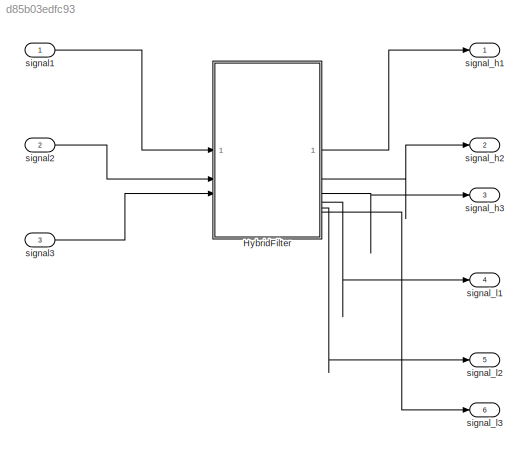
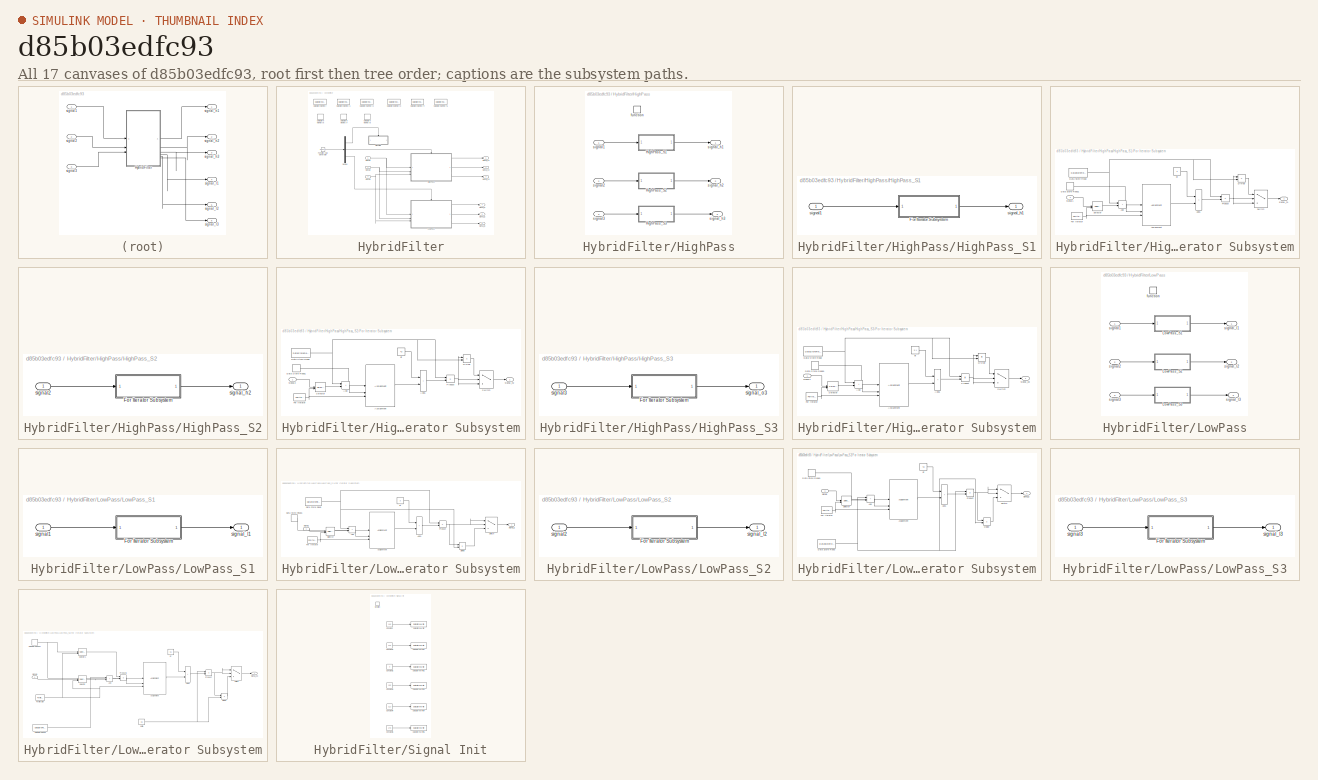
[diagram: thumbnail index - all 17 canvases of the model, root first then tree order]
MODEL slx_d85b03edfc93
KIND model
CONFIG AbsTol = auto
CONFIG EnableMultiTasking = off
CONFIG FixedStep = auto
CONFIG MaxStep = auto
CONFIG MinStep = auto
CONFIG RelTol = 1e-3
CONFIG SampleTimeConstraint = Unconstrained
CONFIG SolverName = VariableStepAuto
CONFIG StartTime = 0.0
CONFIG StopTime = 10.0
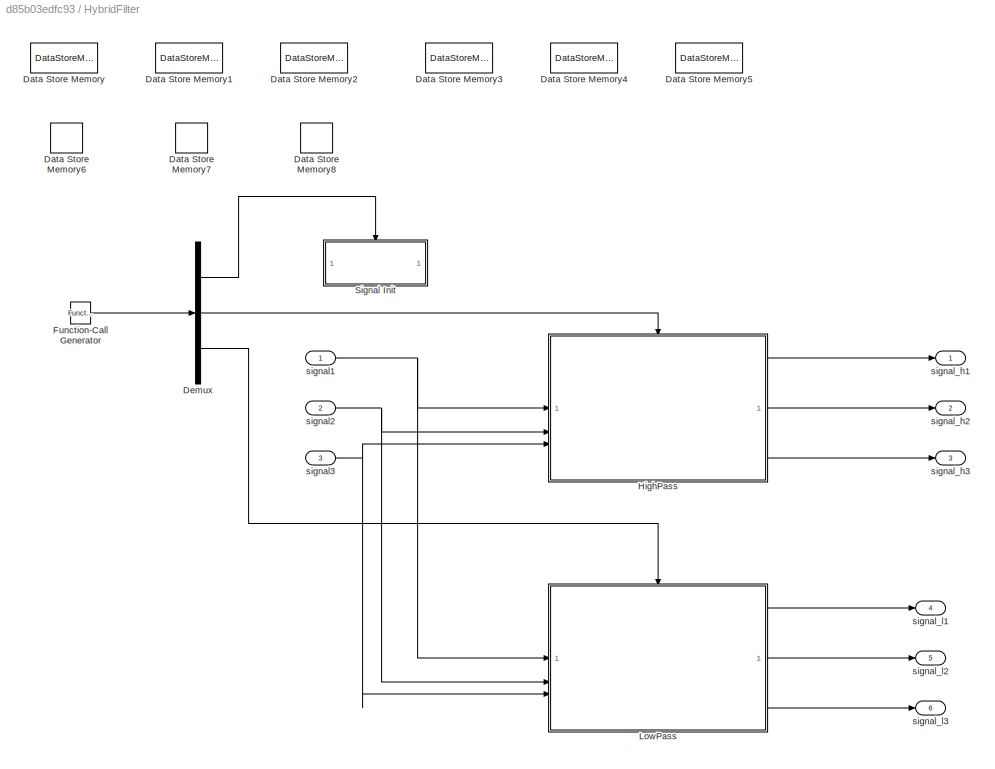
BLOCK [SubSystem] HybridFilter
BLOCK [DataStoreMemory] HybridFilter/Data Store Memory
  DataStoreName = default_hp1
  ShowAdditionalParam = off
  WriteAfterWriteMsg = warning
BLOCK [DataStoreMemory] HybridFilter/Data Store Memory1
  DataStoreName = default_hp2
  ShowAdditionalParam = off
  WriteAfterWriteMsg = warning
BLOCK [DataStoreMemory] HybridFilter/Data Store Memory2
  DataStoreName = default_hp3
  ShowAdditionalParam = off
  WriteAfterWriteMsg = warning
BLOCK [DataStoreMemory] HybridFilter/Data Store Memory3
  DataStoreName = default_lp1
  ShowAdditionalParam = off
  WriteAfterWriteMsg = warning
BLOCK [DataStoreMemory] HybridFilter/Data Store Memory4
  DataStoreName = default_lp2
  ShowAdditionalParam = off
  WriteAfterWriteMsg = warning
BLOCK [DataStoreMemory] HybridFilter/Data Store Memory5
  DataStoreName = default_lp3
  ShowAdditionalParam = off
  WriteAfterWriteMsg = warning
BLOCK [DataStoreMemory] HybridFilter/Data Store Memory6
  DataStoreName = S1
  Dimensions = length
  OutDataTypeStr = double
  ShowAdditionalParam = off
  WriteAfterWriteMsg = warning
BLOCK [DataStoreMemory] HybridFilter/Data Store Memory7
  DataStoreName = S2
  Dimensions = length
  OutDataTypeStr = double
  ShowAdditionalParam = off
  WriteAfterWriteMsg = warning
BLOCK [DataStoreMemory] HybridFilter/Data Store Memory8
  DataStoreName = S3
  Dimensions = length
  OutDataTypeStr = double
  ShowAdditionalParam = off
  WriteAfterWriteMsg = warning
BLOCK [Demux] HybridFilter/Demux
  Outputs = 3
BLOCK [Reference] HybridFilter/Function-Call Generator  REF=simulink/Ports &
Subsystems/Function-Call
Generator
  SourceBlock = simulink/Ports &\nSubsystems/Function-Call\nGenerator
  SourceType = Function-Call Generator
BLOCK [SubSystem] HybridFilter/HighPass
BLOCK [SubSystem] HybridFilter/HighPass/HighPass_S1
  TreatAsAtomicUnit = on
BLOCK [SubSystem] HybridFilter/HighPass/HighPass_S1/For Iterator Subsystem
  TreatAsAtomicUnit = on
BLOCK [Sum] HybridFilter/HighPass/HighPass_S1/For Iterator Subsystem/Add
  IconShape = rectangular
BLOCK [Sum] HybridFilter/HighPass/HighPass_S1/For Iterator Subsystem/Add1
  IconShape = rectangular
BLOCK [Assignment] HybridFilter/HighPass/HighPass_S1/For Iterator Subsystem/Assignment
  DiagnosticForDimensions = Warning
  IndexMode = Zero-based
  IndexOptions = Index vector (port)
  Indices = 1
  OutputSizes = 1
BLOCK [DataStoreRead] HybridFilter/HighPass/HighPass_S1/For Iterator Subsystem/Data Store Read
  DataStoreName = default_hp1
  IndexOptions = Index vector (dialog)
  Indices = 1
  OutputSizes = 1
BLOCK [DataStoreRead] HybridFilter/HighPass/HighPass_S1/For Iterator Subsystem/Data Store Read1
  DataStoreName = S1
  IndexOptions = Index vector (dialog)
  Indices = 1
  OutputSizes = 1
BLOCK [Product] HybridFilter/HighPass/HighPass_S1/For Iterator Subsystem/Divide
  Inputs = */
BLOCK [ForIterator] HybridFilter/HighPass/HighPass_S1/For Iterator Subsystem/For Iterator
  IndexMode = Zero-based
  IterationLimit = length
BLOCK [Product] HybridFilter/HighPass/HighPass_S1/For Iterator Subsystem/Product
BLOCK [Selector] HybridFilter/HighPass/HighPass_S1/For Iterator Subsystem/Selector
  IndexMode = Zero-based
  IndexOptions = Index vector (port)
  Indices = [1 3]
  InputPortWidth = length
  OutputSizes = 1
BLOCK [Switch] HybridFilter/HighPass/HighPass_S1/For Iterator Subsystem/Switch
  Criteria = u2 > Threshold
  InputSameDT = off
  SaturateOnIntegerOverflow = off
  Threshold = 17.13
BLOCK [Constant] HybridFilter/HighPass/HighPass_S1/For Iterator Subsystem/dt
  Value = 3
BLOCK [Inport] HybridFilter/HighPass/HighPass_S1/For Iterator Subsystem/signal1
BLOCK [Outport] HybridFilter/HighPass/HighPass_S1/For Iterator Subsystem/signal_h1
BLOCK [Inport] HybridFilter/HighPass/HighPass_S1/signal1
BLOCK [Outport] HybridFilter/HighPass/HighPass_S1/signal_h1
BLOCK [SubSystem] HybridFilter/HighPass/HighPass_S2
  TreatAsAtomicUnit = on
BLOCK [SubSystem] HybridFilter/HighPass/HighPass_S2/For Iterator Subsystem
  TreatAsAtomicUnit = on
BLOCK [Sum] HybridFilter/HighPass/HighPass_S2/For Iterator Subsystem/Add
  IconShape = rectangular
BLOCK [Sum] HybridFilter/HighPass/HighPass_S2/For Iterator Subsystem/Add1
  IconShape = rectangular
BLOCK [Assignment] HybridFilter/HighPass/HighPass_S2/For Iterator Subsystem/Assignment
  DiagnosticForDimensions = Warning
  IndexMode = Zero-based
  IndexOptions = Index vector (port)
  Indices = 1
  OutputSizes = 1
BLOCK [DataStoreRead] HybridFilter/HighPass/HighPass_S2/For Iterator Subsystem/Data Store Read
  DataStoreName = default_hp2
  IndexOptions = Index vector (dialog)
  Indices = 1
  OutputSizes = 1
BLOCK [DataStoreRead] HybridFilter/HighPass/HighPass_S2/For Iterator Subsystem/Data Store Read1
  DataStoreName = S2
  IndexOptions = Index vector (dialog)
  Indices = 1
  OutputSizes = 1
BLOCK [Product] HybridFilter/HighPass/HighPass_S2/For Iterator Subsystem/Divide
  Inputs = */
BLOCK [ForIterator] HybridFilter/HighPass/HighPass_S2/For Iterator Subsystem/For Iterator
  IndexMode = Zero-based
  IterationLimit = length
BLOCK [Product] HybridFilter/HighPass/HighPass_S2/For Iterator Subsystem/Product
BLOCK [Selector] HybridFilter/HighPass/HighPass_S2/For Iterator Subsystem/Selector
  IndexMode = Zero-based
  IndexOptions = Index vector (port)
  Indices = [1 3]
  InputPortWidth = length
  OutputSizes = 1
BLOCK [Switch] HybridFilter/HighPass/HighPass_S2/For Iterator Subsystem/Switch
  Criteria = u2 > Threshold
  InputSameDT = off
  SaturateOnIntegerOverflow = off
  Threshold = 17.13
BLOCK [Constant] HybridFilter/HighPass/HighPass_S2/For Iterator Subsystem/dt
  Value = 4.3
BLOCK [Inport] HybridFilter/HighPass/HighPass_S2/For Iterator Subsystem/signal2
BLOCK [Outport] HybridFilter/HighPass/HighPass_S2/For Iterator Subsystem/signal_h2
BLOCK [Inport] HybridFilter/HighPass/HighPass_S2/signal2
BLOCK [Outport] HybridFilter/HighPass/HighPass_S2/signal_h2
BLOCK [SubSystem] HybridFilter/HighPass/HighPass_S3
  TreatAsAtomicUnit = on
BLOCK [SubSystem] HybridFilter/HighPass/HighPass_S3/For Iterator Subsystem
  TreatAsAtomicUnit = on
BLOCK [Sum] HybridFilter/HighPass/HighPass_S3/For Iterator Subsystem/Add
  IconShape = rectangular
BLOCK [Sum] HybridFilter/HighPass/HighPass_S3/For Iterator Subsystem/Add1
  IconShape = rectangular
BLOCK [Assignment] HybridFilter/HighPass/HighPass_S3/For Iterator Subsystem/Assignment
  DiagnosticForDimensions = Warning
  IndexMode = Zero-based
  IndexOptions = Index vector (port)
  Indices = 1
  OutputSizes = 1
BLOCK [DataStoreRead] HybridFilter/HighPass/HighPass_S3/For Iterator Subsystem/Data Store Read
  DataStoreName = default_hp3
  IndexOptions = Index vector (dialog)
  Indices = 1
  OutputSizes = 1
BLOCK [DataStoreRead] HybridFilter/HighPass/HighPass_S3/For Iterator Subsystem/Data Store Read1
  DataStoreName = S3
  IndexOptions = Index vector (dialog)
  Indices = 1
  OutputSizes = 1
BLOCK [Product] HybridFilter/HighPass/HighPass_S3/For Iterator Subsystem/Divide
  Inputs = */
BLOCK [ForIterator] HybridFilter/HighPass/HighPass_S3/For Iterator Subsystem/For Iterator
  IndexMode = Zero-based
  IterationLimit = length
BLOCK [Product] HybridFilter/HighPass/HighPass_S3/For Iterator Subsystem/Product
BLOCK [Selector] HybridFilter/HighPass/HighPass_S3/For Iterator Subsystem/Selector
  IndexMode = Zero-based
  IndexOptions = Index vector (port)
  Indices = [1 3]
  InputPortWidth = length
  OutputSizes = 1
BLOCK [Switch] HybridFilter/HighPass/HighPass_S3/For Iterator Subsystem/Switch
  Criteria = u2 > Threshold
  InputSameDT = off
  SaturateOnIntegerOverflow = off
  Threshold = 17.13
BLOCK [Constant] HybridFilter/HighPass/HighPass_S3/For Iterator Subsystem/dt
  Value = 3.1
BLOCK [Inport] HybridFilter/HighPass/HighPass_S3/For Iterator Subsystem/signal3
BLOCK [Outport] HybridFilter/HighPass/HighPass_S3/For Iterator Subsystem/signal_o3
BLOCK [Inport] HybridFilter/HighPass/HighPass_S3/signal3
BLOCK [Outport] HybridFilter/HighPass/HighPass_S3/signal_o3
BLOCK [TriggerPort] HybridFilter/HighPass/function
  StatesWhenEnabling = held
  TriggerType = function-call
  VariantControl = (inherit)
BLOCK [Inport] HybridFilter/HighPass/signal1
BLOCK [Inport] HybridFilter/HighPass/signal2
  Port = 2
BLOCK [Inport] HybridFilter/HighPass/signal3
  Port = 3
BLOCK [Outport] HybridFilter/HighPass/signal_h1
BLOCK [Outport] HybridFilter/HighPass/signal_h2
  Port = 2
BLOCK [Outport] HybridFilter/HighPass/signal_h3
  Port = 3
BLOCK [SubSystem] HybridFilter/LowPass
BLOCK [SubSystem] HybridFilter/LowPass/LowPass_S1
  TreatAsAtomicUnit = on
BLOCK [SubSystem] HybridFilter/LowPass/LowPass_S1/For Iterator Subsystem
  TreatAsAtomicUnit = on
BLOCK [Sum] HybridFilter/LowPass/LowPass_S1/For Iterator Subsystem/Add
  IconShape = rectangular
BLOCK [Sum] HybridFilter/LowPass/LowPass_S1/For Iterator Subsystem/Add1
  IconShape = rectangular
BLOCK [Assignment] HybridFilter/LowPass/LowPass_S1/For Iterator Subsystem/Assignment
  DiagnosticForDimensions = Warning
  IndexMode = Zero-based
  IndexOptions = Index vector (port)
  Indices = 1
  OutputSizes = 1
BLOCK [DataStoreRead] HybridFilter/LowPass/LowPass_S1/For Iterator Subsystem/Data Store Read
  DataStoreName = default_lp1
  IndexOptions = Index vector (dialog)
  Indices = 1
  OutputSizes = 1
BLOCK [DataStoreRead] HybridFilter/LowPass/LowPass_S1/For Iterator Subsystem/Data Store Read1
  DataStoreName = S1
  IndexOptions = Index vector (dialog)
  Indices = 1
  OutputSizes = 1
BLOCK [Product] HybridFilter/LowPass/LowPass_S1/For Iterator Subsystem/Divide
  Inputs = **
BLOCK [ForIterator] HybridFilter/LowPass/LowPass_S1/For Iterator Subsystem/For Iterator
  IndexMode = Zero-based
  IterationLimit = length
BLOCK [Product] HybridFilter/LowPass/LowPass_S1/For Iterator Subsystem/Product
BLOCK [Selector] HybridFilter/LowPass/LowPass_S1/For Iterator Subsystem/Selector
  IndexMode = Zero-based
  IndexOptions = Index vector (port)
  Indices = [1 3]
  InputPortWidth = length
  OutputSizes = 1
BLOCK [Switch] HybridFilter/LowPass/LowPass_S1/For Iterator Subsystem/Switch
  Criteria = u2 > Threshold
  InputSameDT = off
  SaturateOnIntegerOverflow = off
  Threshold = 17.13
BLOCK [Constant] HybridFilter/LowPass/LowPass_S1/For Iterator Subsystem/dt
  Value = 3
BLOCK [Inport] HybridFilter/LowPass/LowPass_S1/For Iterator Subsystem/signal1
BLOCK [Outport] HybridFilter/LowPass/LowPass_S1/For Iterator Subsystem/signal_l1
BLOCK [Inport] HybridFilter/LowPass/LowPass_S1/signal1
BLOCK [Outport] HybridFilter/LowPass/LowPass_S1/signal_l1
BLOCK [SubSystem] HybridFilter/LowPass/LowPass_S2
  TreatAsAtomicUnit = on
BLOCK [SubSystem] HybridFilter/LowPass/LowPass_S2/For Iterator Subsystem
  TreatAsAtomicUnit = on
BLOCK [Sum] HybridFilter/LowPass/LowPass_S2/For Iterator Subsystem/Add
  IconShape = rectangular
BLOCK [Sum] HybridFilter/LowPass/LowPass_S2/For Iterator Subsystem/Add1
  IconShape = rectangular
BLOCK [Assignment] HybridFilter/LowPass/LowPass_S2/For Iterator Subsystem/Assignment
  DiagnosticForDimensions = Warning
  IndexMode = Zero-based
  IndexOptions = Index vector (port)
  Indices = 1
  OutputSizes = 1
BLOCK [DataStoreRead] HybridFilter/LowPass/LowPass_S2/For Iterator Subsystem/Data Store Read
  DataStoreName = default_lp2
  IndexOptions = Index vector (dialog)
  Indices = 1
  OutputSizes = 1
BLOCK [DataStoreRead] HybridFilter/LowPass/LowPass_S2/For Iterator Subsystem/Data Store Read1
  DataStoreName = S2
  IndexOptions = Index vector (dialog)
  Indices = 1
  OutputSizes = 1
BLOCK [Product] HybridFilter/LowPass/LowPass_S2/For Iterator Subsystem/Divide
  Inputs = **
BLOCK [ForIterator] HybridFilter/LowPass/LowPass_S2/For Iterator Subsystem/For Iterator
  IndexMode = Zero-based
  IterationLimit = length
BLOCK [Product] HybridFilter/LowPass/LowPass_S2/For Iterator Subsystem/Product
BLOCK [Selector] HybridFilter/LowPass/LowPass_S2/For Iterator Subsystem/Selector
  IndexMode = Zero-based
  IndexOptions = Index vector (port)
  Indices = [1 3]
  InputPortWidth = length
  OutputSizes = 1
BLOCK [Switch] HybridFilter/LowPass/LowPass_S2/For Iterator Subsystem/Switch
  Criteria = u2 > Threshold
  InputSameDT = off
  SaturateOnIntegerOverflow = off
  Threshold = 17.13
BLOCK [Constant] HybridFilter/LowPass/LowPass_S2/For Iterator Subsystem/dt
  Value = 4.3
BLOCK [Inport] HybridFilter/LowPass/LowPass_S2/For Iterator Subsystem/signal2
BLOCK [Outport] HybridFilter/LowPass/LowPass_S2/For Iterator Subsystem/signal_l2
BLOCK [Inport] HybridFilter/LowPass/LowPass_S2/signal2
BLOCK [Outport] HybridFilter/LowPass/LowPass_S2/signal_l2
BLOCK [SubSystem] HybridFilter/LowPass/LowPass_S3
  TreatAsAtomicUnit = on
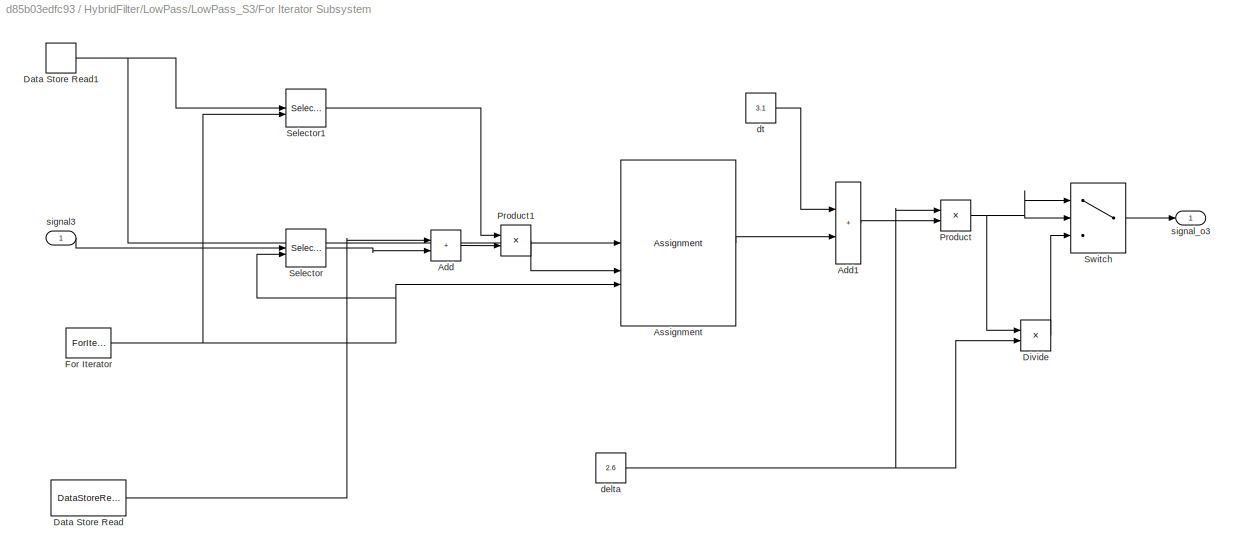
BLOCK [SubSystem] HybridFilter/LowPass/LowPass_S3/For Iterator Subsystem
  TreatAsAtomicUnit = on
BLOCK [Sum] HybridFilter/LowPass/LowPass_S3/For Iterator Subsystem/Add
  IconShape = rectangular
BLOCK [Sum] HybridFilter/LowPass/LowPass_S3/For Iterator Subsystem/Add1
  IconShape = rectangular
BLOCK [Assignment] HybridFilter/LowPass/LowPass_S3/For Iterator Subsystem/Assignment
  DiagnosticForDimensions = Warning
  IndexMode = Zero-based
  IndexOptions = Index vector (port)
  Indices = 1
  OutputSizes = 1
BLOCK [DataStoreRead] HybridFilter/LowPass/LowPass_S3/For Iterator Subsystem/Data Store Read
  DataStoreName = default_lp3
  IndexOptions = Index vector (dialog)
  Indices = 1
  OutputSizes = 1
BLOCK [DataStoreRead] HybridFilter/LowPass/LowPass_S3/For Iterator Subsystem/Data Store Read1
  DataStoreName = S3
  IndexOptions = Index vector (dialog)
  Indices = 1
  OutputSizes = 1
BLOCK [Product] HybridFilter/LowPass/LowPass_S3/For Iterator Subsystem/Divide
  Inputs = **
BLOCK [ForIterator] HybridFilter/LowPass/LowPass_S3/For Iterator Subsystem/For Iterator
  IndexMode = Zero-based
  IterationLimit = length
BLOCK [Product] HybridFilter/LowPass/LowPass_S3/For Iterator Subsystem/Product
BLOCK [Product] HybridFilter/LowPass/LowPass_S3/For Iterator Subsystem/Product1
BLOCK [Selector] HybridFilter/LowPass/LowPass_S3/For Iterator Subsystem/Selector
  IndexMode = Zero-based
  IndexOptions = Index vector (port)
  Indices = [1 3]
  InputPortWidth = length
  OutputSizes = 1
BLOCK [Selector] HybridFilter/LowPass/LowPass_S3/For Iterator Subsystem/Selector1
  IndexMode = Zero-based
  IndexOptions = Index vector (port)
  Indices = [1 3]
  InputPortWidth = length
  OutputSizes = 1
BLOCK [Switch] HybridFilter/LowPass/LowPass_S3/For Iterator Subsystem/Switch
  Criteria = u2 > Threshold
  InputSameDT = off
  SaturateOnIntegerOverflow = off
  Threshold = 17.13
BLOCK [Constant] HybridFilter/LowPass/LowPass_S3/For Iterator Subsystem/delta
  Value = 2.6
BLOCK [Constant] HybridFilter/LowPass/LowPass_S3/For Iterator Subsystem/dt
  Value = 3.1
BLOCK [Inport] HybridFilter/LowPass/LowPass_S3/For Iterator Subsystem/signal3
BLOCK [Outport] HybridFilter/LowPass/LowPass_S3/For Iterator Subsystem/signal_o3
BLOCK [Inport] HybridFilter/LowPass/LowPass_S3/signal3
BLOCK [Outport] HybridFilter/LowPass/LowPass_S3/signal_l3
BLOCK [TriggerPort] HybridFilter/LowPass/function
  StatesWhenEnabling = held
  TriggerType = function-call
  VariantControl = (inherit)
BLOCK [Inport] HybridFilter/LowPass/signal1
BLOCK [Inport] HybridFilter/LowPass/signal2
  Port = 2
BLOCK [Inport] HybridFilter/LowPass/signal3
  Port = 3
BLOCK [Outport] HybridFilter/LowPass/signal_l1
BLOCK [Outport] HybridFilter/LowPass/signal_l2
  Port = 2
BLOCK [Outport] HybridFilter/LowPass/signal_l3
  Port = 3
BLOCK [SubSystem] HybridFilter/Signal Init
  TreatAsAtomicUnit = on
BLOCK [Constant] HybridFilter/Signal Init/Constant
  OutDataTypeStr = single
  Value = 1.95
BLOCK [Constant] HybridFilter/Signal Init/Constant1
  OutDataTypeStr = single
  Value = 2.15
BLOCK [Constant] HybridFilter/Signal Init/Constant2
  OutDataTypeStr = single
  Value = 3
BLOCK [Constant] HybridFilter/Signal Init/Constant3
  OutDataTypeStr = single
  Value = 1.55
BLOCK [Constant] HybridFilter/Signal Init/Constant4
  OutDataTypeStr = single
  Value = 3.13
BLOCK [Constant] HybridFilter/Signal Init/Constant5
  OutDataTypeStr = single
  Value = 2.78
BLOCK [DataStoreWrite] HybridFilter/Signal Init/Data Store Write
  DataStoreName = default_hp1
  IndexOptions = Index vector (dialog)
  Indices = 1
  OutputSizes = 1
BLOCK [DataStoreWrite] HybridFilter/Signal Init/Data Store Write1
  DataStoreName = default_hp2
  IndexOptions = Index vector (dialog)
  Indices = 1
  OutputSizes = 1
BLOCK [DataStoreWrite] HybridFilter/Signal Init/Data Store Write2
  DataStoreName = default_hp3
  IndexOptions = Index vector (dialog)
  Indices = 1
  OutputSizes = 1
BLOCK [DataStoreWrite] HybridFilter/Signal Init/Data Store Write3
  DataStoreName = default_lp1
  IndexOptions = Index vector (dialog)
  Indices = 1
  OutputSizes = 1
BLOCK [DataStoreWrite] HybridFilter/Signal Init/Data Store Write4
  DataStoreName = default_lp2
  IndexOptions = Index vector (dialog)
  Indices = 1
  OutputSizes = 1
BLOCK [DataStoreWrite] HybridFilter/Signal Init/Data Store Write5
  DataStoreName = default_lp3
  IndexOptions = Index vector (dialog)
  Indices = 1
  OutputSizes = 1
BLOCK [TriggerPort] HybridFilter/Signal Init/function
  StatesWhenEnabling = held
  TriggerType = function-call
  VariantControl = (inherit)
BLOCK [Inport] HybridFilter/signal1
  PortDimensions = length
BLOCK [Inport] HybridFilter/signal2
  Port = 2
  PortDimensions = length
BLOCK [Inport] HybridFilter/signal3
  Port = 3
  PortDimensions = length
BLOCK [Outport] HybridFilter/signal_h1
BLOCK [Outport] HybridFilter/signal_h2
  Port = 2
BLOCK [Outport] HybridFilter/signal_h3
  Port = 3
BLOCK [Outport] HybridFilter/signal_l1
  Port = 4
BLOCK [Outport] HybridFilter/signal_l2
  Port = 5
BLOCK [Outport] HybridFilter/signal_l3
  Port = 6
BLOCK [Inport] signal1
  OutDataTypeStr = double
  PortDimensions = 32
BLOCK [Inport] signal2
  OutDataTypeStr = double
  Port = 2
  PortDimensions = 32
BLOCK [Inport] signal3
  OutDataTypeStr = double
  Port = 3
  PortDimensions = 32
BLOCK [Outport] signal_h1
BLOCK [Outport] signal_h2
  Port = 2
BLOCK [Outport] signal_h3
  Port = 3
BLOCK [Outport] signal_l1
  Port = 4
BLOCK [Outport] signal_l2
  Port = 5
BLOCK [Outport] signal_l3
  Port = 6
LINE HybridFilter/Demux:1 -> HybridFilter/Signal Init:trigger
LINE HybridFilter/Demux:2 -> HybridFilter/HighPass:trigger
LINE HybridFilter/Demux:3 -> HybridFilter/LowPass:trigger
LINE HybridFilter/Function-Call Generator:1 -> HybridFilter/Demux:1
LINE HybridFilter/HighPass/HighPass_S1/For Iterator Subsystem/Add1:1 -> HybridFilter/HighPass/HighPass_S1/For Iterator Subsystem/Product:2
LINE HybridFilter/HighPass/HighPass_S1/For Iterator Subsystem/Add:1 -> HybridFilter/HighPass/HighPass_S1/For Iterator Subsystem/Assignment:2
LINE HybridFilter/HighPass/HighPass_S1/For Iterator Subsystem/Assignment:1 -> HybridFilter/HighPass/HighPass_S1/For Iterator Subsystem/Add1:2
LINE HybridFilter/HighPass/HighPass_S1/For Iterator Subsystem/Data Store Read1:1 -> HybridFilter/HighPass/HighPass_S1/For Iterator Subsystem/Assignment:1
NET HybridFilter/HighPass/HighPass_S1/For Iterator Subsystem/Data Store Read:1 -> HybridFilter/HighPass/HighPass_S1/For Iterator Subsystem/Add:1, HybridFilter/HighPass/HighPass_S1/For Iterator Subsystem/Divide:2, HybridFilter/HighPass/HighPass_S1/For Iterator Subsystem/Product:1
LINE HybridFilter/HighPass/HighPass_S1/For Iterator Subsystem/Divide:1 -> HybridFilter/HighPass/HighPass_S1/For Iterator Subsystem/Switch:1
NET HybridFilter/HighPass/HighPass_S1/For Iterator Subsystem/For Iterator:1 -> HybridFilter/HighPass/HighPass_S1/For Iterator Subsystem/Assignment:3, HybridFilter/HighPass/HighPass_S1/For Iterator Subsystem/Selector:2
NET HybridFilter/HighPass/HighPass_S1/For Iterator Subsystem/Product:1 -> HybridFilter/HighPass/HighPass_S1/For Iterator Subsystem/Divide:1, HybridFilter/HighPass/HighPass_S1/For Iterator Subsystem/Switch:2, HybridFilter/HighPass/HighPass_S1/For Iterator Subsystem/Switch:3
LINE HybridFilter/HighPass/HighPass_S1/For Iterator Subsystem/Selector:1 -> HybridFilter/HighPass/HighPass_S1/For Iterator Subsystem/Add:2
LINE HybridFilter/HighPass/HighPass_S1/For Iterator Subsystem/Switch:1 -> HybridFilter/HighPass/HighPass_S1/For Iterator Subsystem/signal_h1:1
LINE HybridFilter/HighPass/HighPass_S1/For Iterator Subsystem/dt:1 -> HybridFilter/HighPass/HighPass_S1/For Iterator Subsystem/Add1:1
LINE HybridFilter/HighPass/HighPass_S1/For Iterator Subsystem/signal1:1 -> HybridFilter/HighPass/HighPass_S1/For Iterator Subsystem/Selector:1
LINE HybridFilter/HighPass/HighPass_S1/For Iterator Subsystem:1 -> HybridFilter/HighPass/HighPass_S1/signal_h1:1
LINE HybridFilter/HighPass/HighPass_S1/signal1:1 -> HybridFilter/HighPass/HighPass_S1/For Iterator Subsystem:1
LINE HybridFilter/HighPass/HighPass_S1:1 -> HybridFilter/HighPass/signal_h1:1
LINE HybridFilter/HighPass/HighPass_S2/For Iterator Subsystem/Add1:1 -> HybridFilter/HighPass/HighPass_S2/For Iterator Subsystem/Product:2
LINE HybridFilter/HighPass/HighPass_S2/For Iterator Subsystem/Add:1 -> HybridFilter/HighPass/HighPass_S2/For Iterator Subsystem/Assignment:2
LINE HybridFilter/HighPass/HighPass_S2/For Iterator Subsystem/Assignment:1 -> HybridFilter/HighPass/HighPass_S2/For Iterator Subsystem/Add1:2
LINE HybridFilter/HighPass/HighPass_S2/For Iterator Subsystem/Data Store Read1:1 -> HybridFilter/HighPass/HighPass_S2/For Iterator Subsystem/Assignment:1
NET HybridFilter/HighPass/HighPass_S2/For Iterator Subsystem/Data Store Read:1 -> HybridFilter/HighPass/HighPass_S2/For Iterator Subsystem/Add:1, HybridFilter/HighPass/HighPass_S2/For Iterator Subsystem/Divide:2, HybridFilter/HighPass/HighPass_S2/For Iterator Subsystem/Product:1
LINE HybridFilter/HighPass/HighPass_S2/For Iterator Subsystem/Divide:1 -> HybridFilter/HighPass/HighPass_S2/For Iterator Subsystem/Switch:1
NET HybridFilter/HighPass/HighPass_S2/For Iterator Subsystem/For Iterator:1 -> HybridFilter/HighPass/HighPass_S2/For Iterator Subsystem/Assignment:3, HybridFilter/HighPass/HighPass_S2/For Iterator Subsystem/Selector:2
NET HybridFilter/HighPass/HighPass_S2/For Iterator Subsystem/Product:1 -> HybridFilter/HighPass/HighPass_S2/For Iterator Subsystem/Divide:1, HybridFilter/HighPass/HighPass_S2/For Iterator Subsystem/Switch:2, HybridFilter/HighPass/HighPass_S2/For Iterator Subsystem/Switch:3
LINE HybridFilter/HighPass/HighPass_S2/For Iterator Subsystem/Selector:1 -> HybridFilter/HighPass/HighPass_S2/For Iterator Subsystem/Add:2
LINE HybridFilter/HighPass/HighPass_S2/For Iterator Subsystem/Switch:1 -> HybridFilter/HighPass/HighPass_S2/For Iterator Subsystem/signal_h2:1
LINE HybridFilter/HighPass/HighPass_S2/For Iterator Subsystem/dt:1 -> HybridFilter/HighPass/HighPass_S2/For Iterator Subsystem/Add1:1
LINE HybridFilter/HighPass/HighPass_S2/For Iterator Subsystem/signal2:1 -> HybridFilter/HighPass/HighPass_S2/For Iterator Subsystem/Selector:1
LINE HybridFilter/HighPass/HighPass_S2/For Iterator Subsystem:1 -> HybridFilter/HighPass/HighPass_S2/signal_h2:1
LINE HybridFilter/HighPass/HighPass_S2/signal2:1 -> HybridFilter/HighPass/HighPass_S2/For Iterator Subsystem:1
LINE HybridFilter/HighPass/HighPass_S2:1 -> HybridFilter/HighPass/signal_h2:1
LINE HybridFilter/HighPass/HighPass_S3/For Iterator Subsystem/Add1:1 -> HybridFilter/HighPass/HighPass_S3/For Iterator Subsystem/Product:2
LINE HybridFilter/HighPass/HighPass_S3/For Iterator Subsystem/Add:1 -> HybridFilter/HighPass/HighPass_S3/For Iterator Subsystem/Assignment:2
LINE HybridFilter/HighPass/HighPass_S3/For Iterator Subsystem/Assignment:1 -> HybridFilter/HighPass/HighPass_S3/For Iterator Subsystem/Add1:2
LINE HybridFilter/HighPass/HighPass_S3/For Iterator Subsystem/Data Store Read1:1 -> HybridFilter/HighPass/HighPass_S3/For Iterator Subsystem/Assignment:1
NET HybridFilter/HighPass/HighPass_S3/For Iterator Subsystem/Data Store Read:1 -> HybridFilter/HighPass/HighPass_S3/For Iterator Subsystem/Add:1, HybridFilter/HighPass/HighPass_S3/For Iterator Subsystem/Divide:2, HybridFilter/HighPass/HighPass_S3/For Iterator Subsystem/Product:1
LINE HybridFilter/HighPass/HighPass_S3/For Iterator Subsystem/Divide:1 -> HybridFilter/HighPass/HighPass_S3/For Iterator Subsystem/Switch:1
NET HybridFilter/HighPass/HighPass_S3/For Iterator Subsystem/For Iterator:1 -> HybridFilter/HighPass/HighPass_S3/For Iterator Subsystem/Assignment:3, HybridFilter/HighPass/HighPass_S3/For Iterator Subsystem/Selector:2
NET HybridFilter/HighPass/HighPass_S3/For Iterator Subsystem/Product:1 -> HybridFilter/HighPass/HighPass_S3/For Iterator Subsystem/Divide:1, HybridFilter/HighPass/HighPass_S3/For Iterator Subsystem/Switch:2, HybridFilter/HighPass/HighPass_S3/For Iterator Subsystem/Switch:3
LINE HybridFilter/HighPass/HighPass_S3/For Iterator Subsystem/Selector:1 -> HybridFilter/HighPass/HighPass_S3/For Iterator Subsystem/Add:2
LINE HybridFilter/HighPass/HighPass_S3/For Iterator Subsystem/Switch:1 -> HybridFilter/HighPass/HighPass_S3/For Iterator Subsystem/signal_o3:1
LINE HybridFilter/HighPass/HighPass_S3/For Iterator Subsystem/dt:1 -> HybridFilter/HighPass/HighPass_S3/For Iterator Subsystem/Add1:1
LINE HybridFilter/HighPass/HighPass_S3/For Iterator Subsystem/signal3:1 -> HybridFilter/HighPass/HighPass_S3/For Iterator Subsystem/Selector:1
LINE HybridFilter/HighPass/HighPass_S3/For Iterator Subsystem:1 -> HybridFilter/HighPass/HighPass_S3/signal_o3:1
LINE HybridFilter/HighPass/HighPass_S3/signal3:1 -> HybridFilter/HighPass/HighPass_S3/For Iterator Subsystem:1
LINE HybridFilter/HighPass/HighPass_S3:1 -> HybridFilter/HighPass/signal_h3:1
LINE HybridFilter/HighPass/signal1:1 -> HybridFilter/HighPass/HighPass_S1:1
LINE HybridFilter/HighPass/signal2:1 -> HybridFilter/HighPass/HighPass_S2:1
LINE HybridFilter/HighPass/signal3:1 -> HybridFilter/HighPass/HighPass_S3:1
LINE HybridFilter/HighPass:1 -> HybridFilter/signal_h1:1
LINE HybridFilter/HighPass:2 -> HybridFilter/signal_h2:1
LINE HybridFilter/HighPass:3 -> HybridFilter/signal_h3:1
LINE HybridFilter/LowPass/LowPass_S1/For Iterator Subsystem/Add1:1 -> HybridFilter/LowPass/LowPass_S1/For Iterator Subsystem/Product:2
LINE HybridFilter/LowPass/LowPass_S1/For Iterator Subsystem/Add:1 -> HybridFilter/LowPass/LowPass_S1/For Iterator Subsystem/Assignment:2
LINE HybridFilter/LowPass/LowPass_S1/For Iterator Subsystem/Assignment:1 -> HybridFilter/LowPass/LowPass_S1/For Iterator Subsystem/Add1:2
LINE HybridFilter/LowPass/LowPass_S1/For Iterator Subsystem/Data Store Read1:1 -> HybridFilter/LowPass/LowPass_S1/For Iterator Subsystem/Assignment:1
NET HybridFilter/LowPass/LowPass_S1/For Iterator Subsystem/Data Store Read:1 -> HybridFilter/LowPass/LowPass_S1/For Iterator Subsystem/Add:1, HybridFilter/LowPass/LowPass_S1/For Iterator Subsystem/Divide:2, HybridFilter/LowPass/LowPass_S1/For Iterator Subsystem/Product:1
LINE HybridFilter/LowPass/LowPass_S1/For Iterator Subsystem/Divide:1 -> HybridFilter/LowPass/LowPass_S1/For Iterator Subsystem/Switch:3
NET HybridFilter/LowPass/LowPass_S1/For Iterator Subsystem/For Iterator:1 -> HybridFilter/LowPass/LowPass_S1/For Iterator Subsystem/Assignment:3, HybridFilter/LowPass/LowPass_S1/For Iterator Subsystem/Selector:2
NET HybridFilter/LowPass/LowPass_S1/For Iterator Subsystem/Product:1 -> HybridFilter/LowPass/LowPass_S1/For Iterator Subsystem/Divide:1, HybridFilter/LowPass/LowPass_S1/For Iterator Subsystem/Switch:1, HybridFilter/LowPass/LowPass_S1/For Iterator Subsystem/Switch:2
LINE HybridFilter/LowPass/LowPass_S1/For Iterator Subsystem/Selector:1 -> HybridFilter/LowPass/LowPass_S1/For Iterator Subsystem/Add:2
LINE HybridFilter/LowPass/LowPass_S1/For Iterator Subsystem/Switch:1 -> HybridFilter/LowPass/LowPass_S1/For Iterator Subsystem/signal_l1:1
LINE HybridFilter/LowPass/LowPass_S1/For Iterator Subsystem/dt:1 -> HybridFilter/LowPass/LowPass_S1/For Iterator Subsystem/Add1:1
LINE HybridFilter/LowPass/LowPass_S1/For Iterator Subsystem/signal1:1 -> HybridFilter/LowPass/LowPass_S1/For Iterator Subsystem/Selector:1
LINE HybridFilter/LowPass/LowPass_S1/For Iterator Subsystem:1 -> HybridFilter/LowPass/LowPass_S1/signal_l1:1
LINE HybridFilter/LowPass/LowPass_S1/signal1:1 -> HybridFilter/LowPass/LowPass_S1/For Iterator Subsystem:1
LINE HybridFilter/LowPass/LowPass_S1:1 -> HybridFilter/LowPass/signal_l1:1
LINE HybridFilter/LowPass/LowPass_S2/For Iterator Subsystem/Add1:1 -> HybridFilter/LowPass/LowPass_S2/For Iterator Subsystem/Product:2
LINE HybridFilter/LowPass/LowPass_S2/For Iterator Subsystem/Add:1 -> HybridFilter/LowPass/LowPass_S2/For Iterator Subsystem/Assignment:2
LINE HybridFilter/LowPass/LowPass_S2/For Iterator Subsystem/Assignment:1 -> HybridFilter/LowPass/LowPass_S2/For Iterator Subsystem/Add1:2
LINE HybridFilter/LowPass/LowPass_S2/For Iterator Subsystem/Data Store Read1:1 -> HybridFilter/LowPass/LowPass_S2/For Iterator Subsystem/Assignment:1
NET HybridFilter/LowPass/LowPass_S2/For Iterator Subsystem/Data Store Read:1 -> HybridFilter/LowPass/LowPass_S2/For Iterator Subsystem/Add:1, HybridFilter/LowPass/LowPass_S2/For Iterator Subsystem/Divide:2, HybridFilter/LowPass/LowPass_S2/For Iterator Subsystem/Product:1
LINE HybridFilter/LowPass/LowPass_S2/For Iterator Subsystem/Divide:1 -> HybridFilter/LowPass/LowPass_S2/For Iterator Subsystem/Switch:3
NET HybridFilter/LowPass/LowPass_S2/For Iterator Subsystem/For Iterator:1 -> HybridFilter/LowPass/LowPass_S2/For Iterator Subsystem/Assignment:3, HybridFilter/LowPass/LowPass_S2/For Iterator Subsystem/Selector:2
NET HybridFilter/LowPass/LowPass_S2/For Iterator Subsystem/Product:1 -> HybridFilter/LowPass/LowPass_S2/For Iterator Subsystem/Divide:1, HybridFilter/LowPass/LowPass_S2/For Iterator Subsystem/Switch:1, HybridFilter/LowPass/LowPass_S2/For Iterator Subsystem/Switch:2
LINE HybridFilter/LowPass/LowPass_S2/For Iterator Subsystem/Selector:1 -> HybridFilter/LowPass/LowPass_S2/For Iterator Subsystem/Add:2
LINE HybridFilter/LowPass/LowPass_S2/For Iterator Subsystem/Switch:1 -> HybridFilter/LowPass/LowPass_S2/For Iterator Subsystem/signal_l2:1
LINE HybridFilter/LowPass/LowPass_S2/For Iterator Subsystem/dt:1 -> HybridFilter/LowPass/LowPass_S2/For Iterator Subsystem/Add1:1
LINE HybridFilter/LowPass/LowPass_S2/For Iterator Subsystem/signal2:1 -> HybridFilter/LowPass/LowPass_S2/For Iterator Subsystem/Selector:1
LINE HybridFilter/LowPass/LowPass_S2/For Iterator Subsystem:1 -> HybridFilter/LowPass/LowPass_S2/signal_l2:1
LINE HybridFilter/LowPass/LowPass_S2/signal2:1 -> HybridFilter/LowPass/LowPass_S2/For Iterator Subsystem:1
LINE HybridFilter/LowPass/LowPass_S2:1 -> HybridFilter/LowPass/signal_l2:1
LINE HybridFilter/LowPass/LowPass_S3/For Iterator Subsystem/Add1:1 -> HybridFilter/LowPass/LowPass_S3/For Iterator Subsystem/Product:2
LINE HybridFilter/LowPass/LowPass_S3/For Iterator Subsystem/Add:1 -> HybridFilter/LowPass/LowPass_S3/For Iterator Subsystem/Product1:2
LINE HybridFilter/LowPass/LowPass_S3/For Iterator Subsystem/Assignment:1 -> HybridFilter/LowPass/LowPass_S3/For Iterator Subsystem/Add1:2
NET HybridFilter/LowPass/LowPass_S3/For Iterator Subsystem/Data Store Read1:1 -> HybridFilter/LowPass/LowPass_S3/For Iterator Subsystem/Assignment:1, HybridFilter/LowPass/LowPass_S3/For Iterator Subsystem/Selector1:1
LINE HybridFilter/LowPass/LowPass_S3/For Iterator Subsystem/Data Store Read:1 -> HybridFilter/LowPass/LowPass_S3/For Iterator Subsystem/Add:1
LINE HybridFilter/LowPass/LowPass_S3/For Iterator Subsystem/Divide:1 -> HybridFilter/LowPass/LowPass_S3/For Iterator Subsystem/Switch:3
NET HybridFilter/LowPass/LowPass_S3/For Iterator Subsystem/For Iterator:1 -> HybridFilter/LowPass/LowPass_S3/For Iterator Subsystem/Assignment:3, HybridFilter/LowPass/LowPass_S3/For Iterator Subsystem/Selector1:2, HybridFilter/LowPass/LowPass_S3/For Iterator Subsystem/Selector:2
LINE HybridFilter/LowPass/LowPass_S3/For Iterator Subsystem/Product1:1 -> HybridFilter/LowPass/LowPass_S3/For Iterator Subsystem/Assignment:2
NET HybridFilter/LowPass/LowPass_S3/For Iterator Subsystem/Product:1 -> HybridFilter/LowPass/LowPass_S3/For Iterator Subsystem/Divide:1, HybridFilter/LowPass/LowPass_S3/For Iterator Subsystem/Switch:1, HybridFilter/LowPass/LowPass_S3/For Iterator Subsystem/Switch:2
LINE HybridFilter/LowPass/LowPass_S3/For Iterator Subsystem/Selector1:1 -> HybridFilter/LowPass/LowPass_S3/For Iterator Subsystem/Product1:1
LINE HybridFilter/LowPass/LowPass_S3/For Iterator Subsystem/Selector:1 -> HybridFilter/LowPass/LowPass_S3/For Iterator Subsystem/Add:2
LINE HybridFilter/LowPass/LowPass_S3/For Iterator Subsystem/Switch:1 -> HybridFilter/LowPass/LowPass_S3/For Iterator Subsystem/signal_o3:1
NET HybridFilter/LowPass/LowPass_S3/For Iterator Subsystem/delta:1 -> HybridFilter/LowPass/LowPass_S3/For Iterator Subsystem/Divide:2, HybridFilter/LowPass/LowPass_S3/For Iterator Subsystem/Product:1
LINE HybridFilter/LowPass/LowPass_S3/For Iterator Subsystem/dt:1 -> HybridFilter/LowPass/LowPass_S3/For Iterator Subsystem/Add1:1
LINE HybridFilter/LowPass/LowPass_S3/For Iterator Subsystem/signal3:1 -> HybridFilter/LowPass/LowPass_S3/For Iterator Subsystem/Selector:1
LINE HybridFilter/LowPass/LowPass_S3/For Iterator Subsystem:1 -> HybridFilter/LowPass/LowPass_S3/signal_l3:1
LINE HybridFilter/LowPass/LowPass_S3/signal3:1 -> HybridFilter/LowPass/LowPass_S3/For Iterator Subsystem:1
LINE HybridFilter/LowPass/LowPass_S3:1 -> HybridFilter/LowPass/signal_l3:1
LINE HybridFilter/LowPass/signal1:1 -> HybridFilter/LowPass/LowPass_S1:1
LINE HybridFilter/LowPass/signal2:1 -> HybridFilter/LowPass/LowPass_S2:1
LINE HybridFilter/LowPass/signal3:1 -> HybridFilter/LowPass/LowPass_S3:1
LINE HybridFilter/LowPass:1 -> HybridFilter/signal_l1:1
LINE HybridFilter/LowPass:2 -> HybridFilter/signal_l2:1
LINE HybridFilter/LowPass:3 -> HybridFilter/signal_l3:1
LINE HybridFilter/Signal Init/Constant1:1 -> HybridFilter/Signal Init/Data Store Write1:1
LINE HybridFilter/Signal Init/Constant2:1 -> HybridFilter/Signal Init/Data Store Write2:1
LINE HybridFilter/Signal Init/Constant3:1 -> HybridFilter/Signal Init/Data Store Write3:1
LINE HybridFilter/Signal Init/Constant4:1 -> HybridFilter/Signal Init/Data Store Write4:1
LINE HybridFilter/Signal Init/Constant5:1 -> HybridFilter/Signal Init/Data Store Write5:1
LINE HybridFilter/Signal Init/Constant:1 -> HybridFilter/Signal Init/Data Store Write:1
NET HybridFilter/signal1:1 -> HybridFilter/HighPass:1, HybridFilter/LowPass:1
NET HybridFilter/signal2:1 -> HybridFilter/HighPass:2, HybridFilter/LowPass:2
NET HybridFilter/signal3:1 -> HybridFilter/HighPass:3, HybridFilter/LowPass:3
LINE HybridFilter:1 -> signal_h1:1
LINE HybridFilter:2 -> signal_h2:1
LINE HybridFilter:3 -> signal_h3:1
LINE HybridFilter:4 -> signal_l1:1
LINE HybridFilter:5 -> signal_l2:1
LINE HybridFilter:6 -> signal_l3:1
LINE signal1:1 -> HybridFilter:1
LINE signal2:1 -> HybridFilter:2
LINE signal3:1 -> HybridFilter:3
note: NET lines group one-source signal fan-out (src -> all destinations, sorted); 1:1 wires keep LINE
